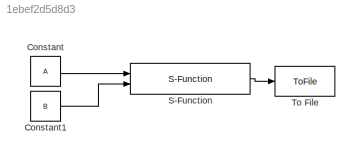
MODEL slx_1ebef2d5d8d3
KIND model
CONFIG AbsTol = auto
CONFIG EnableMultiTasking = off
CONFIG FixedStep = 0.5
CONFIG MaxStep = auto
CONFIG MinStep = auto
CONFIG RelTol = 1e-3
CONFIG SampleTimeConstraint = Unconstrained
CONFIG Solver = FixedStepAuto
CONFIG SolverName = FixedStepAuto
CONFIG StartTime = 0.0
CONFIG StopTime = 1
BLOCK [Constant] Constant
  Value = A
BLOCK [Constant] Constant1
  Value = B
BLOCK [S-Function] S-Function
  EnableBusSupport = off
  FunctionName = solve_chol_sfun
  Parameters = D
  Ports = [2, 1]
  SFcnIsStateOwnerBlock = off
  SFunctionDeploymentMode = off
BLOCK [ToFile] To File
  Filename = test.mat
  MatrixName = out
  Ports = [1]
LINE Constant1:1 -> S-Function:2
LINE Constant:1 -> S-Function:1
LINE S-Function:1 -> To File:1
